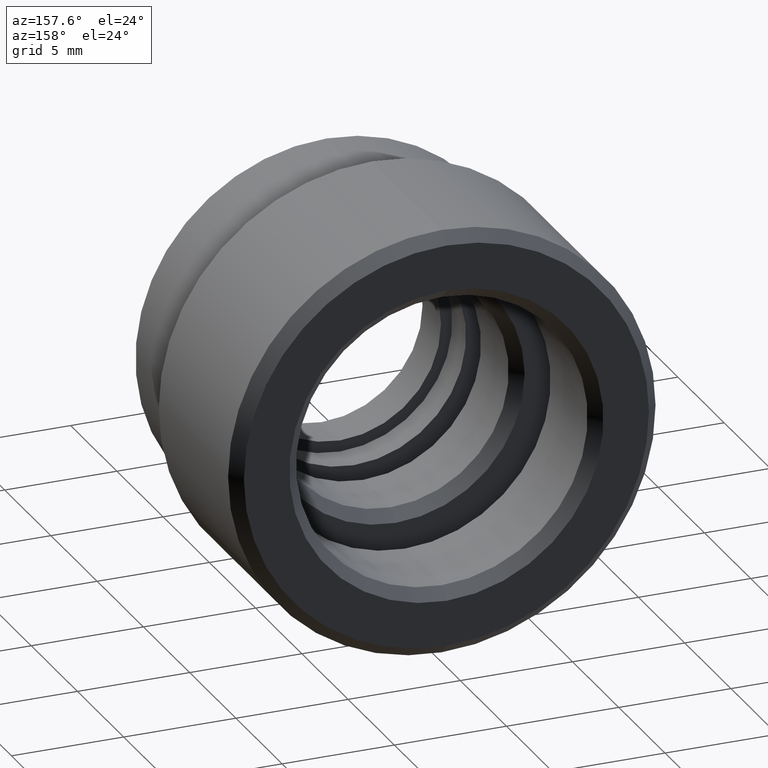
[diagram: clean part render]
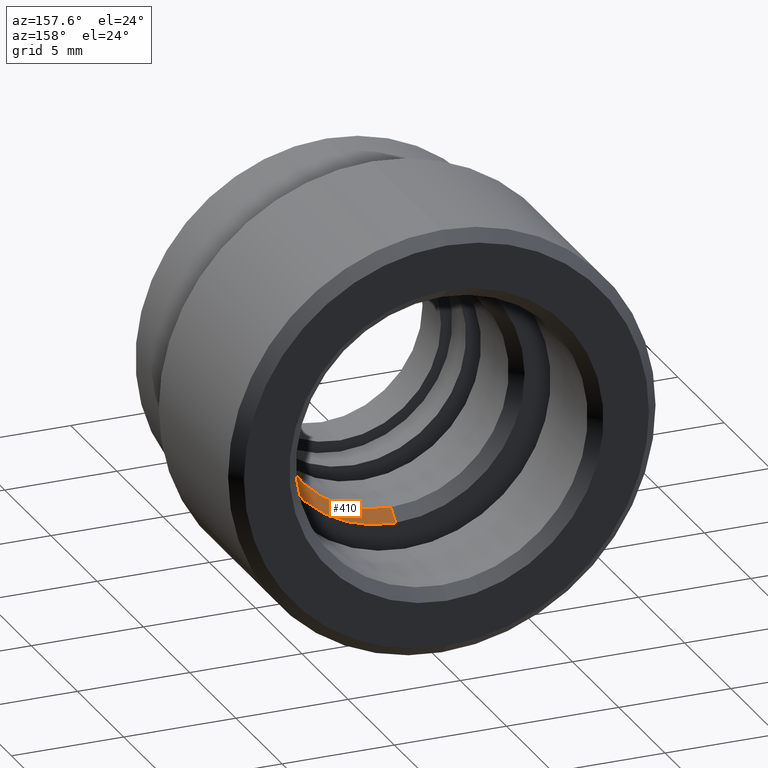
[diagram: same view with one face highlighted and labeled with its STEP entity id]
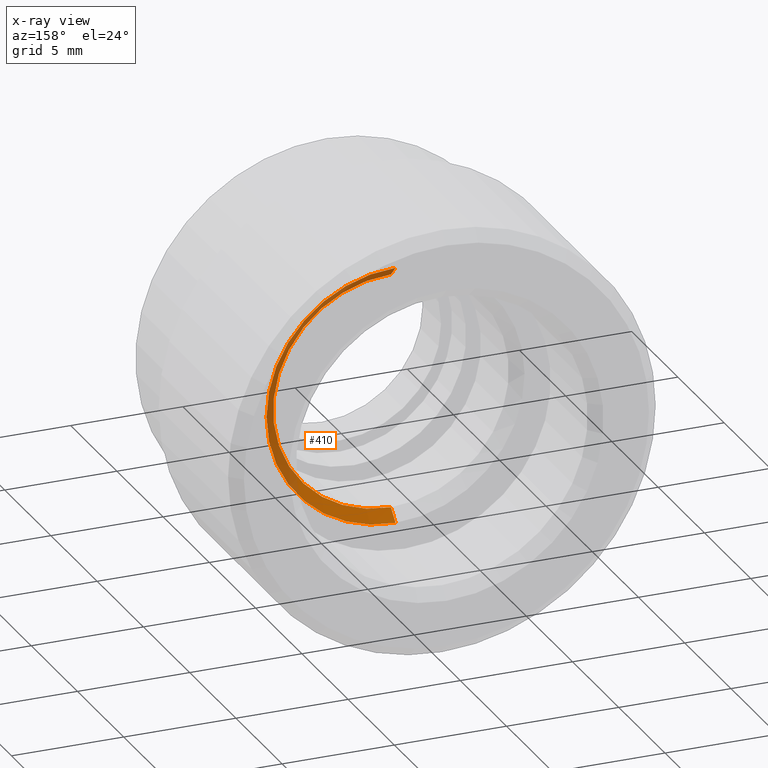
[diagram: x-ray of the same camera — body ghosted, the highlighted face saturated]
A machine part, auxiliary view. The second image highlights one B-rep face of the part: STEP entity #410.
The next image is the same camera in x-ray: the body ghosted, the highlighted face saturated — about 52% of this face is hidden behind the body in this view.
In plain terms, the highlighted conical surface has half-angle 45 deg.
Its self-contained STEP definition (entity closure, byte-faithful):
#51 = ORIENTED_EDGE ( 'NONE', *, *, #454, .F. ) ;
#74 = CARTESIAN_POINT ( 'NONE',  ( 0.0000000000000000000, 8.000000000000000000, 0.0000000000000000000 ) ) ;
#87 = CIRCLE ( 'NONE', #547, 5.749999999999998200 ) ;
#107 = ORIENTED_EDGE ( 'NONE', *, *, #1007, .F. ) ;
#136 = ORIENTED_EDGE ( 'NONE', *, *, #646, .T. ) ;
#159 = DIRECTION ( 'NONE',  ( 0.0000000000000000000, 0.0000000000000000000, 1.000000000000000000 ) ) ;
#231 = VECTOR ( 'NONE', #955, 1000.000000000000000 ) ;
#240 = EDGE_LOOP ( 'NONE', ( #51, #605, #136, #107 ) ) ;
#258 = CONICAL_SURFACE ( 'NONE', #830, 5.749999999999998200, 0.7853981633974457300 ) ;
#276 = LINE ( 'NONE', #871, #311 ) ;
#296 = FACE_OUTER_BOUND ( 'NONE', #240, .T. ) ;
#311 = VECTOR ( 'NONE', #1039, 1000.000000000000000 ) ;
#339 = CARTESIAN_POINT ( 'NONE',  ( 6.429395695523603200E-016, 7.499999999999999100, 5.249999999999999100 ) ) ;
#348 = VERTEX_POINT ( 'NONE', #377 ) ;
#377 = CARTESIAN_POINT ( 'NONE',  ( 0.0000000000000000000, 8.000000000000000000, 5.749999999999998200 ) ) ;
#379 = DIRECTION ( 'NONE',  ( -0.0000000000000000000, 1.000000000000000000, -0.0000000000000000000 ) ) ;
#410 = ADVANCED_FACE ( 'NONE', ( #296 ), #258, .F. ) ;
#439 = CARTESIAN_POINT ( 'NONE',  ( 7.041719095097278900E-016, 8.000000000000000000, -5.749999999999998200 ) ) ;
#454 = EDGE_CURVE ( 'NONE', #731, #703, #276, .T. ) ;
#505 = CARTESIAN_POINT ( 'NONE',  ( 0.0000000000000000000, 7.499999999999999100, 0.0000000000000000000 ) ) ;
#524 = DIRECTION ( 'NONE',  ( -0.0000000000000000000, 1.000000000000000000, -0.0000000000000000000 ) ) ;
#540 = DIRECTION ( 'NONE',  ( -0.0000000000000000000, -1.000000000000000000, -0.0000000000000000000 ) ) ;
#543 = CIRCLE ( 'NONE', #762, 5.249999999999999100 ) ;
#547 = AXIS2_PLACEMENT_3D ( 'NONE', #74, #540, #624 ) ;
#605 = ORIENTED_EDGE ( 'NONE', *, *, #623, .F. ) ;
#623 = EDGE_CURVE ( 'NONE', #952, #731, #543, .T. ) ;
#624 = DIRECTION ( 'NONE',  ( 0.0000000000000000000, 0.0000000000000000000, 1.000000000000000000 ) ) ;
#646 = EDGE_CURVE ( 'NONE', #952, #348, #714, .T. ) ;
#701 = CARTESIAN_POINT ( 'NONE',  ( 0.0000000000000000000, 7.499999999999999100, -5.249999999999999100 ) ) ;
#703 = VERTEX_POINT ( 'NONE', #439 ) ;
#714 = LINE ( 'NONE', #858, #231 ) ;
#731 = VERTEX_POINT ( 'NONE', #701 ) ;
#762 = AXIS2_PLACEMENT_3D ( 'NONE', #505, #524, #899 ) ;
#830 = AXIS2_PLACEMENT_3D ( 'NONE', #1113, #379, #159 ) ;
#858 = CARTESIAN_POINT ( 'NONE',  ( 0.0000000000000000000, 8.000000000000000000, 5.749999999999998200 ) ) ;
#871 = CARTESIAN_POINT ( 'NONE',  ( 7.041719095097278900E-016, 8.000000000000000000, -5.749999999999998200 ) ) ;
#899 = DIRECTION ( 'NONE',  ( 0.0000000000000000000, 0.0000000000000000000, 1.000000000000000000 ) ) ;
#952 = VERTEX_POINT ( 'NONE', #339 ) ;
#955 = DIRECTION ( 'NONE',  ( 0.0000000000000000000, 0.7071067811865493500, 0.7071067811865456900 ) ) ;
#1007 = EDGE_CURVE ( 'NONE', #703, #348, #87, .T. ) ;
#1039 = DIRECTION ( 'NONE',  ( 8.659560562354911900E-017, 0.7071067811865493500, -0.7071067811865456900 ) ) ;
#1113 = CARTESIAN_POINT ( 'NONE',  ( 0.0000000000000000000, 8.000000000000000000, 0.0000000000000000000 ) ) ;